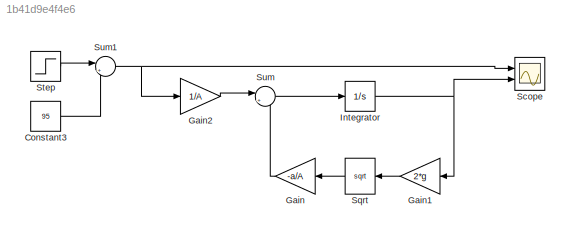
MODEL slx_1b41d9e4f4e6
KIND model
CONFIG AbsTol = auto
CONFIG EnableMultiTasking = off
CONFIG FixedStep = auto
CONFIG MaxStep = auto
CONFIG MinStep = auto
CONFIG RelTol = 1e-3
CONFIG SampleTimeConstraint = Unconstrained
CONFIG SolverName = VariableStepAuto
CONFIG StartTime = 0.0
CONFIG StopTime = 1000
BLOCK [Constant] Constant3
  Value = 95
BLOCK [Gain] Gain
  Gain = -a/A
  NameLocation = top
BLOCK [Gain] Gain1
  Gain = 2*g
BLOCK [Gain] Gain2
  Gain = 1/A
BLOCK [Integrator] Integrator
  InitialCondition = 1.006
  Ports = [1, 1]
BLOCK [Scope] Scope
  Floating = off
  NumInputPorts = 2
  Ports = [2]
  ScopeSpecificationString = Simulink.scopes.TimeScopeBlockCfg('CurrentConfiguration', extmgr.ConfigurationSet(extmgr.Configuration('Core','General UI',true),extmgr.Configuration('Core','Source UI',true),extmgr.Configuration('Sources','WiredSimulink',true),extmgr.Configuration('Visuals','Time Domain',true,'SerializedDisplays',{struct('MinYLimReal','91.25','MaxYLimReal','128.75','YLabelReal','','MinYLimMag','91.25','MaxYLimMag...<+2032ch>
BLOCK [Sqrt] Sqrt
  NameLocation = top
BLOCK [Step] Step
  After = 30
  SampleTime = 0
  Time = 200
BLOCK [Sum] Sum
  Inputs = |++
  Ports = [2, 1]
BLOCK [Sum] Sum1
  Inputs = |++
  Ports = [2, 1]
LINE Constant3:1 -> Sum1:2
LINE Gain1:1 -> Sqrt:1
LINE Gain2:1 -> Sum:1
LINE Gain:1 -> Sum:2
NET Integrator:1 -> Gain1:1, Scope:2
LINE Sqrt:1 -> Gain:1
LINE Step:1 -> Sum1:1
NET Sum1:1 -> Gain2:1, Scope:1
LINE Sum:1 -> Integrator:1
note: NET lines group one-source signal fan-out (src -> all destinations, sorted); 1:1 wires keep LINE
